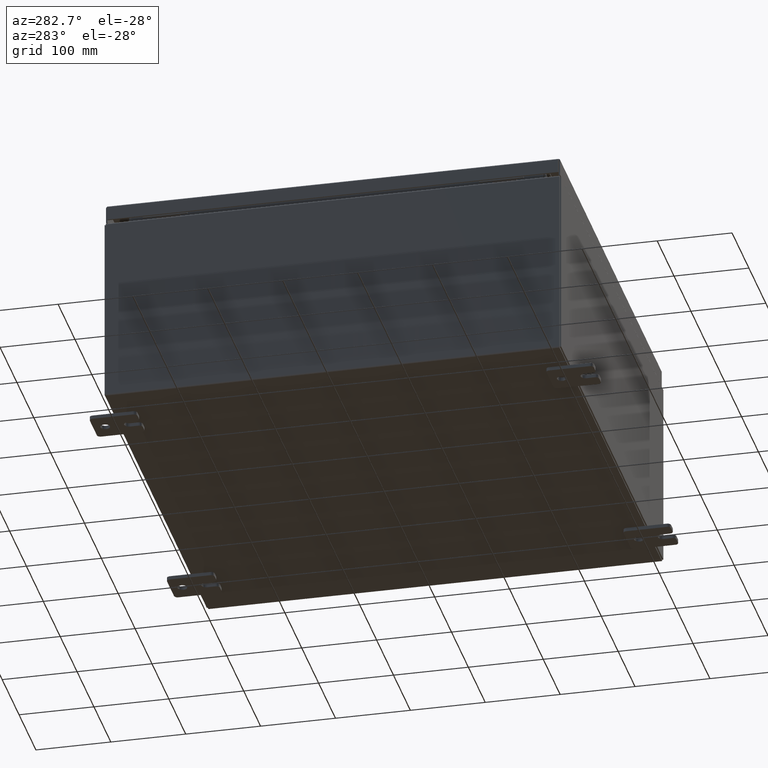
[diagram: clean part render]
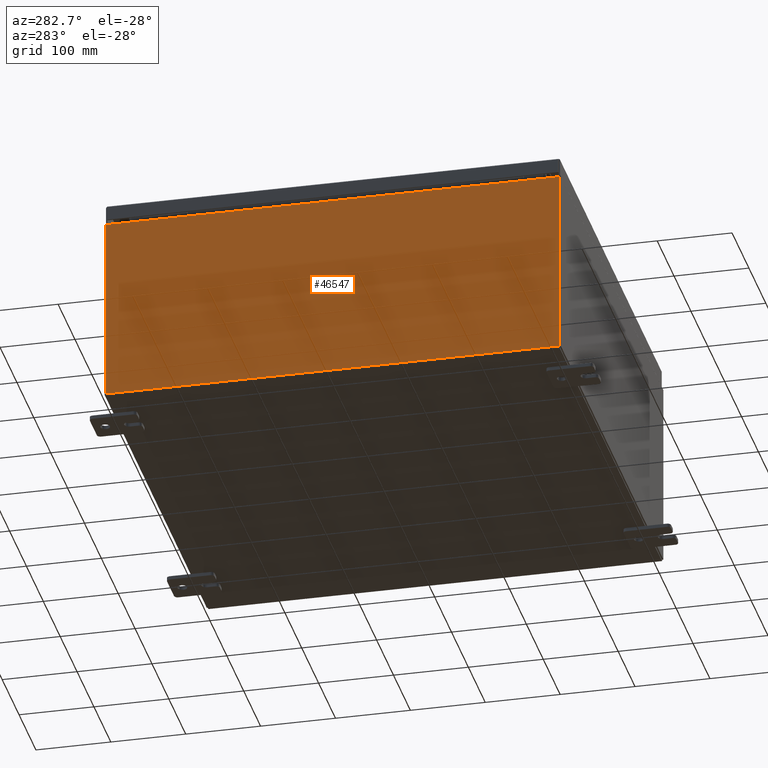
[diagram: same view with one face highlighted and labeled with its STEP entity id]
A machine part, auxiliary view. The second image highlights one B-rep face of the part: STEP entity #46547.
In plain terms, the highlighted planar face has unit normal (1, 0, 0).
Its self-contained STEP definition (entity closure, byte-faithful):
#345 = AXIS2_PLACEMENT_3D ( 'NONE', #56254, #26873, #61090 ) ;
#2288 = ORIENTED_EDGE ( 'NONE', *, *, #55184, .T. ) ;
#7086 = CARTESIAN_POINT ( 'NONE',  ( -12.00000000000000400, -11.92530000000000000, 0.01299999999999984700 ) ) ;
#8238 = VECTOR ( 'NONE', #48623, 39.37007874015748100 ) ;
#9412 = CARTESIAN_POINT ( 'NONE',  ( -12.00000000000003700, -11.92530000000000000, 9.837599999999998300 ) ) ;
#9990 = ORIENTED_EDGE ( 'NONE', *, *, #22272, .T. ) ;
#11747 = VERTEX_POINT ( 'NONE', #9412 ) ;
#12063 = VECTOR ( 'NONE', #47488, 39.37007874015748100 ) ;
#12277 = ORIENTED_EDGE ( 'NONE', *, *, #23954, .T. ) ;
#13080 = CARTESIAN_POINT ( 'NONE',  ( -12.00000000000000400, 11.92529999999999800, -4.253780798634224100E-014 ) ) ;
#13159 = FACE_OUTER_BOUND ( 'NONE', #51769, .T. ) ;
#14196 = CARTESIAN_POINT ( 'NONE',  ( -12.00000000000000400, -11.92530000000000400, -4.253780798634224100E-014 ) ) ;
#16718 = PLANE ( 'NONE',  #345 ) ;
#19783 = LINE ( 'NONE', #14196, #8238 ) ;
#22272 = EDGE_CURVE ( 'NONE', #22617, #11747, #19783, .T. ) ;
#22617 = VERTEX_POINT ( 'NONE', #7086 ) ;
#23006 = EDGE_CURVE ( 'NONE', #22617, #43372, #38987, .T. ) ;
#23954 = EDGE_CURVE ( 'NONE', #11747, #26892, #32057, .T. ) ;
#26873 = DIRECTION ( 'NONE',  ( 1.000000000000000000, 0.0000000000000000000, 3.523082860860887800E-015 ) ) ;
#26892 = VERTEX_POINT ( 'NONE', #50661 ) ;
#29823 = CARTESIAN_POINT ( 'NONE',  ( -12.00000000000003700, -11.92530000000000400, 9.837599999999998300 ) ) ;
#30516 = VECTOR ( 'NONE', #54233, 39.37007874015748100 ) ;
#32057 = LINE ( 'NONE', #29823, #30516 ) ;
#38987 = LINE ( 'NONE', #39019, #56622 ) ;
#39019 = CARTESIAN_POINT ( 'NONE',  ( -12.00000000000000400, 11.92529999999999800, 0.01299999999999984700 ) ) ;
#43372 = VERTEX_POINT ( 'NONE', #52142 ) ;
#46547 = ADVANCED_FACE ( 'NONE', ( #13159 ), #16718, .F. ) ;
#47488 = DIRECTION ( 'NONE',  ( 3.523082860860888200E-015, 0.0000000000000000000, -1.000000000000000000 ) ) ;
#48623 = DIRECTION ( 'NONE',  ( -3.523082860860888200E-015, 0.0000000000000000000, 1.000000000000000000 ) ) ;
#50661 = CARTESIAN_POINT ( 'NONE',  ( -12.00000000000003700, 11.92529999999999800, 9.837599999999998300 ) ) ;
#51769 = EDGE_LOOP ( 'NONE', ( #12277, #2288, #54167, #9990 ) ) ;
#52142 = CARTESIAN_POINT ( 'NONE',  ( -12.00000000000000400, 11.92529999999999800, 0.01299999999999984300 ) ) ;
#52846 = LINE ( 'NONE', #13080, #12063 ) ;
#54167 = ORIENTED_EDGE ( 'NONE', *, *, #23006, .F. ) ;
#54233 = DIRECTION ( 'NONE',  ( 0.0000000000000000000, 1.000000000000000000, 0.0000000000000000000 ) ) ;
#54412 = DIRECTION ( 'NONE',  ( -0.0000000000000000000, 1.000000000000000000, -0.0000000000000000000 ) ) ;
#55184 = EDGE_CURVE ( 'NONE', #26892, #43372, #52846, .T. ) ;
#56254 = CARTESIAN_POINT ( 'NONE',  ( -12.00000000000000400, 0.0000000000000000000, -4.253780798634224100E-014 ) ) ;
#56622 = VECTOR ( 'NONE', #54412, 39.37007874015748100 ) ;
#61090 = DIRECTION ( 'NONE',  ( 3.523082860860887800E-015, 0.0000000000000000000, -1.000000000000000000 ) ) ;